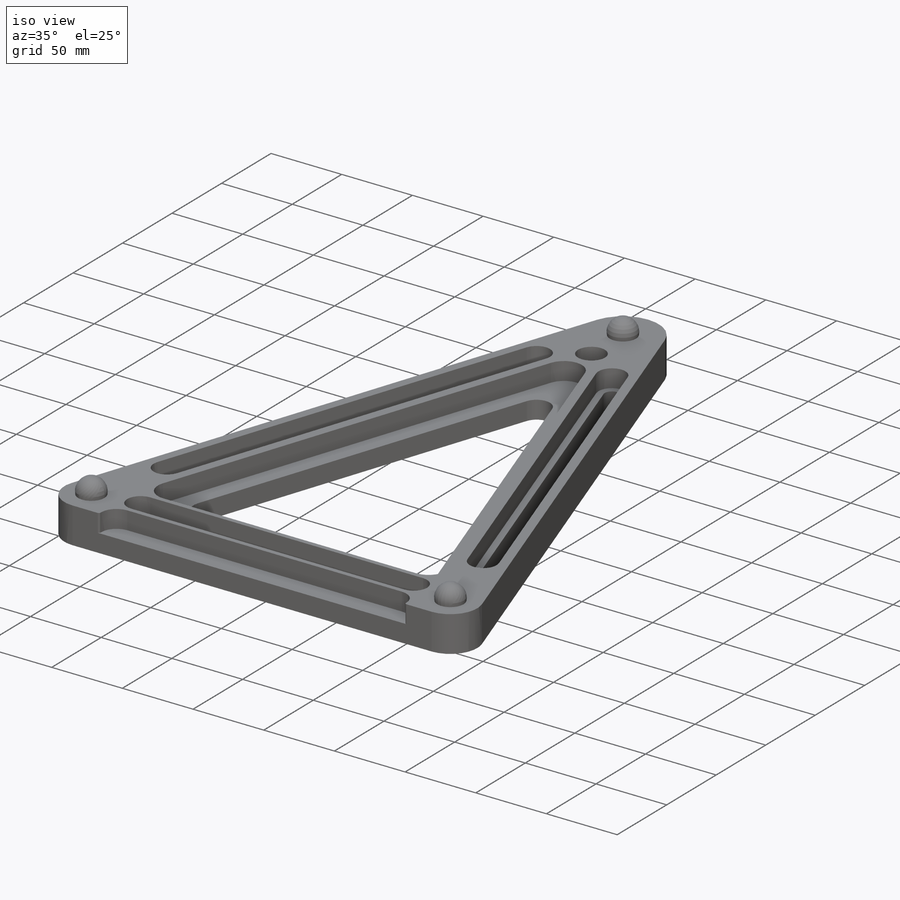
[diagram: iso view]
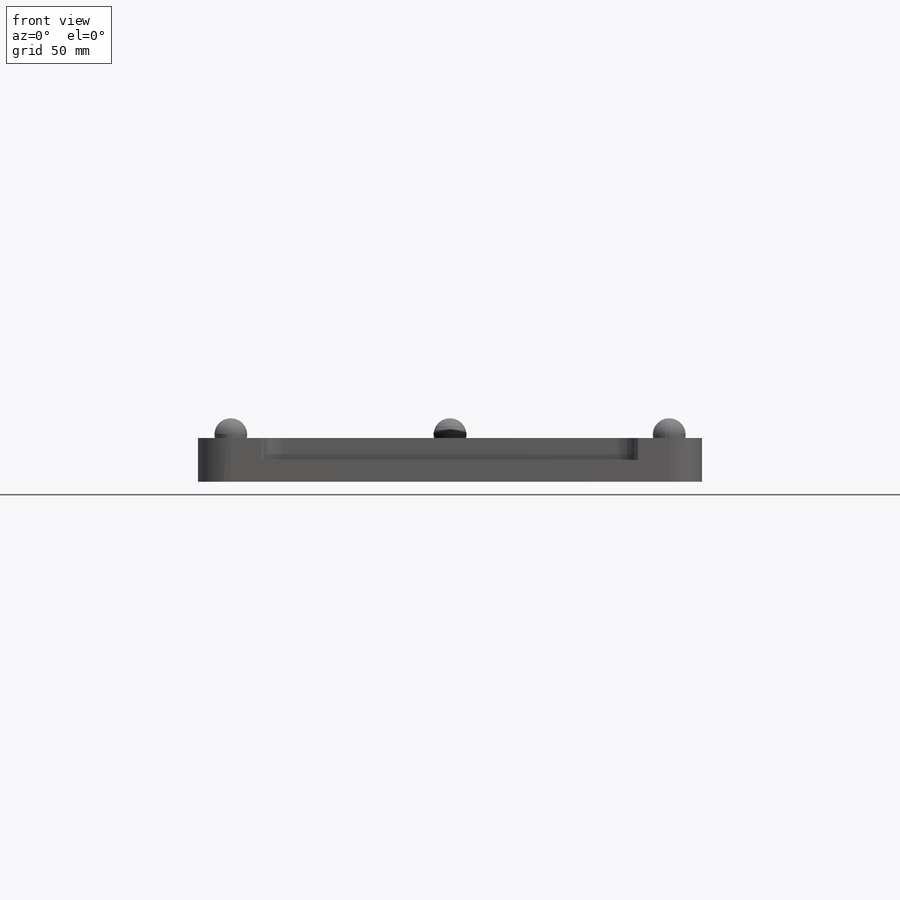
[diagram: front view]
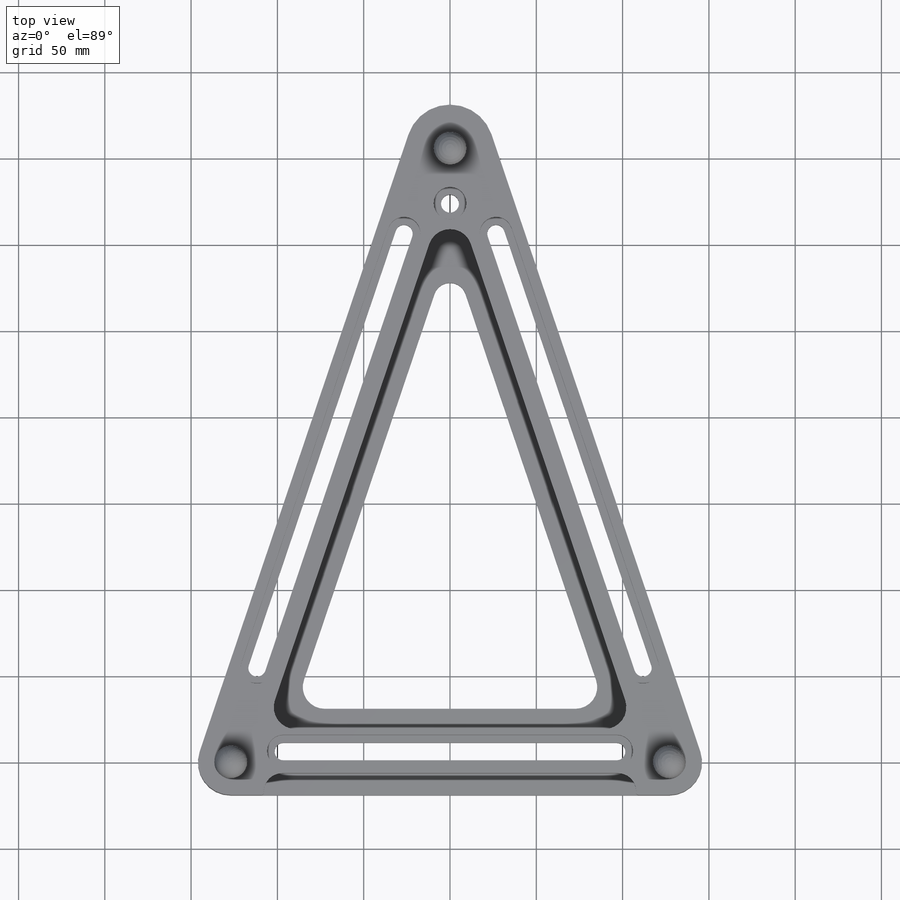
[diagram: top view]
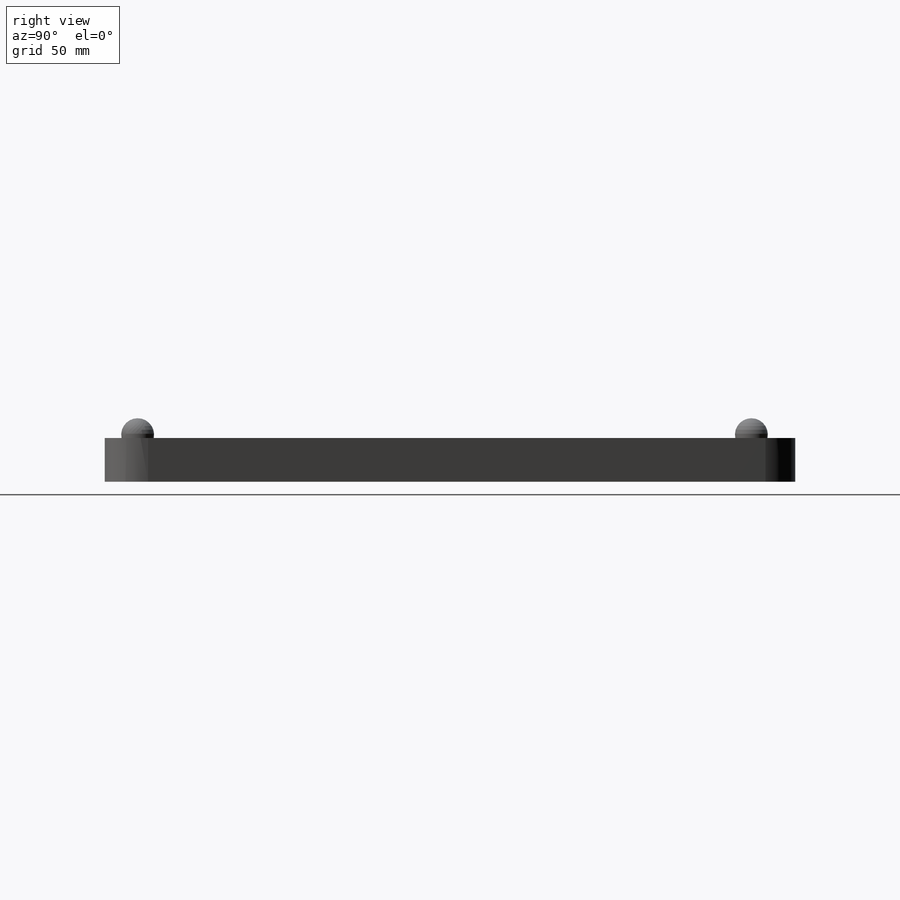
[diagram: right view]
SOLIDWORKS PART (.sldprt)
format: sldprt  version: not decoded by parser v0  size: 510,976 bytes
history: native  units: mm
features: sketch x12, cut_extrude x7, plane x5, material x1, revolve x1, extrude x1, cut_revolve x1, mirror x1, fillet x1 + 3 further entries (+8 scaffold rows collapsed)
feature tree (41):
  scaffold x8  (default folders/planes/origin — collapsed)
  material  "Material <not specified>"
  plane  "Plane X-Y"
  plane  "Plane X-Z"
  plane  "Plane Y-Z"
  "Axis - Y"
  "Axis - Z"
  sketch  "Sketch1"  dims[c1.D1=~64.853279mm c2.D1=30.0deg c3.D1=254.0mm c3.D2=355.6mm]
  sketch  "Sketch3"  dims[D1=19.05mm]
  revolve  "Revolve1"  Angle=360deg
  plane  "Plane1"  Offset=36.83mm
  plane  "Plane2"  Offset=25.4mm
  sketch  "Sketch5"  dims[c1.D1=25.4mm c1.D2=304.8mm c2.D2=19.05mm]
  extrude  "Extrude1"  [1 undecoded]
  sketch  "Sketch4"
  "Sketch-Pattern1"
  sketch  "Sketch6"  dims[D1=19.05mm D2=12.7mm D3=10.414mm D4=31.75mm]
  cut_revolve  "Cut-Revolve1"  Angle=360deg
  sketch  "Sketch8"  dims[c1.D2=5.08mm c1.D1=10.16mm c2.D2=~260.661063mm c3.D2=~0.838275deg c3.D1=10.795mm c4.D2=76.2mm c4.D3=68.834mm c4.D4=10.16mm]
  cut_extrude  "Cut-Extrude1"  [1 undecoded]
  sketch  "Sketch9"  dims[D1=4.445mm]
  cut_extrude  "Cut-Extrude2"  Depth=12.7mm
  mirror  "Mirror1"
  sketch  "Sketch10"  dims[D1=12.7mm D2=19.05mm]
  cut_extrude  "Cut-Extrude3"  Depth=12.7mm
  fillet  "Fillet1"  Radius=10.795mm
  sketch  "Sketch11"  dims[D1=20.32mm D2=10.16mm D3=25.4mm]
  cut_extrude  "Cut-Extrude4"  [1 undecoded]
  sketch  "Sketch12"  dims[D1=4.445mm]
  cut_extrude  "Cut-Extrude5"  Depth=12.7mm
  sketch  "Sketch13"  dims[D4=9.525mm D5=12.7mm D1=50.165mm D2=43.815mm D3=43.815mm]
  cut_extrude  "Cut-Extrude6"  [1 undecoded]
  sketch  "Sketch14"  dims[D2=12.7mm D3=12.7mm D1=12.065mm]
  cut_extrude  "Cut-Extrude7"  Depth=12.7mm
decode coverage: 18 of 24 modeling features carry decoded parameters; 3 rows unclassified (native names shown)
note: ~ marks probable driven/reference dimensions
note: 4 parameter values undecoded
summary: no parameter record found for 4 features
note: suppression state not decoded; provenance and decode notes live in map.json
